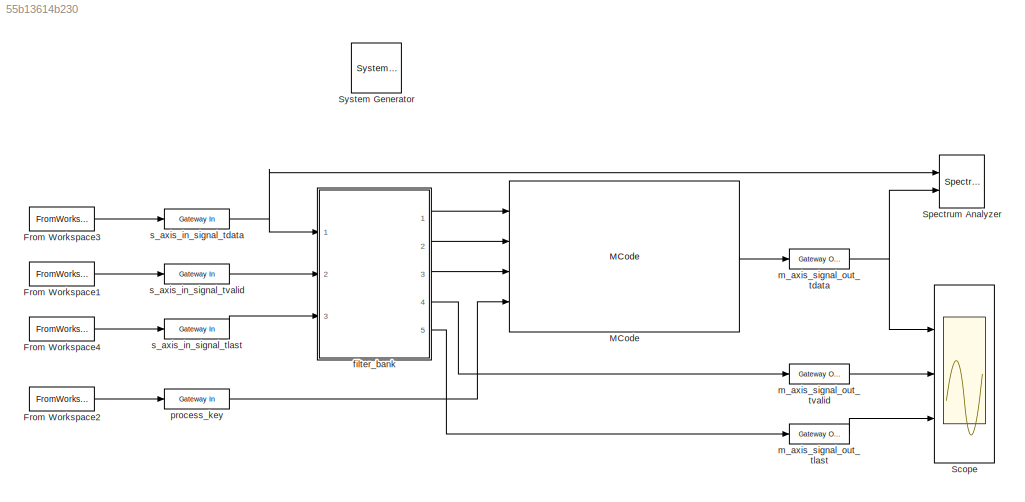
MODEL slx_55b13614b230
KIND model
CONFIG AbsTol = auto
CONFIG EnableMultiTasking = off
CONFIG FixedStep = auto
CONFIG InitFcn = [input, sampling_rate] = model_init()
CONFIG MaxStep = auto
CONFIG MinStep = auto
CONFIG RelTol = 1e-3
CONFIG SampleTimeConstraint = Unconstrained
CONFIG Solver = VariableStepAuto
CONFIG SolverName = VariableStepAuto
CONFIG StartTime = 0.0
CONFIG StopTime = model_parameters.end
BLOCK [Reference]  System Generator  REF=xbsIndex_r4/ System Generator
  AttributesFormatString = System\nGenerator
  Ports = []
  SourceBlock = xbsIndex_r4/ System Generator
  SourceType = Xilinx System Generator Block
  Tag = genX
  UserDataPersistent = on
BLOCK [FromWorkspace] From Workspace1
  Interpolate = off
  OutputAfterFinalValue = Setting to zero
  SampleTime = 1/model_parameters.sampling_rate
  VariableName = input.tvalid
  ZeroCross = on
BLOCK [FromWorkspace] From Workspace2
  Interpolate = off
  OutputAfterFinalValue = Setting to zero
  SampleTime = 1/model_parameters.sampling_rate
  VariableName = input.key
  ZeroCross = on
BLOCK [FromWorkspace] From Workspace3
  Interpolate = off
  OutputAfterFinalValue = Setting to zero
  SampleTime = 1/model_parameters.sampling_rate
  VariableName = input.tdata
  ZeroCross = on
BLOCK [FromWorkspace] From Workspace4
  Interpolate = off
  OutputAfterFinalValue = Setting to zero
  SampleTime = 1/model_parameters.sampling_rate
  VariableName = input.tlast
  ZeroCross = on
BLOCK [Reference] MCode  REF=xbsIndex_r4/MCode
  Ports = [4, 1]
  SourceBlock = xbsIndex_r4/MCode
  SourceType = Xilinx MCode Block Block
BLOCK [Scope] Scope
  Floating = off
  NumInputPorts = 3
  Ports = [3]
  ScopeSpecificationString = Simulink.scopes.TimeScopeBlockCfg('CurrentConfiguration', extmgr.ConfigurationSet(extmgr.Configuration('Core','General UI',true),extmgr.Configuration('Core','Source UI',true),extmgr.Configuration('Sources','WiredSimulink',true),extmgr.Configuration('Visuals','Time Domain',true,'SerializedDisplays',{struct('MinYLimReal','-0.04988','MaxYLimReal','1.10905','YLabelReal','','MinYLimMag','0.00000','MaxY...<+1512ch>
BLOCK [SpectrumAnalyzer] Spectrum Analyzer
  NumInputPorts = 2
  Ports = [2]
  ScopeSpecificationString = spbscopes.SpectrumAnalyzerBlockCfg('CurrentConfiguration', extmgr.ConfigurationSet(extmgr.Configuration('Core','General UI',true),extmgr.Configuration('Core','Source UI',true),extmgr.Configuration('Sources','WiredSimulink',true),extmgr.Configuration('Visuals','Spectrum',true,'AxesProperties',struct('Color',{[0 0 0],[0 0 0]},'XColor',{[0.686274509803922 0.686274509803922 0.686274509803922],[0.68627...<+2151ch>
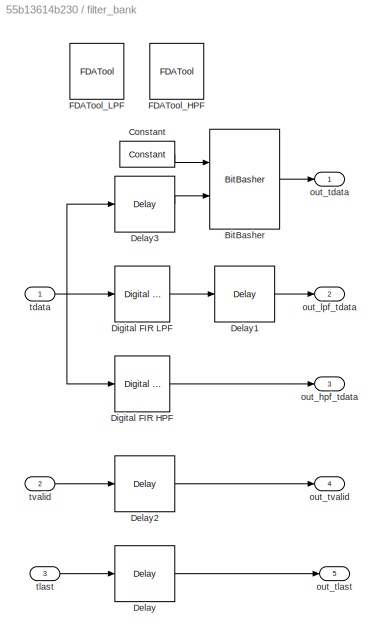
BLOCK [SubSystem] filter_bank
  Ports = [3, 5]
  RequestExecContextInheritance = off
BLOCK [Reference] filter_bank/BitBasher  REF=xbsIndex_r4/BitBasher
  Ports = [2, 1]
  SourceBlock = xbsIndex_r4/BitBasher
  SourceType = Xilinx BitBasher Block
BLOCK [Reference] filter_bank/Constant  REF=xbsIndex_r4/Constant
  Ports = [0, 1]
  SourceBlock = xbsIndex_r4/Constant
  SourceType = Xilinx Constant Block Block
BLOCK [Reference] filter_bank/Delay  REF=xbsIndex_r4/Delay
  Ports = [1, 1]
  SourceBlock = xbsIndex_r4/Delay
  SourceType = Xilinx Delay Block
BLOCK [Reference] filter_bank/Delay1  REF=xbsIndex_r4/Delay
  Ports = [1, 1]
  SourceBlock = xbsIndex_r4/Delay
  SourceType = Xilinx Delay Block
BLOCK [Reference] filter_bank/Delay2  REF=xbsIndex_r4/Delay
  Ports = [1, 1]
  SourceBlock = xbsIndex_r4/Delay
  SourceType = Xilinx Delay Block
BLOCK [Reference] filter_bank/Delay3  REF=xbsIndex_r4/Delay
  Ports = [1, 1]
  SourceBlock = xbsIndex_r4/Delay
  SourceType = Xilinx Delay Block
BLOCK [Reference] filter_bank/Digital FIR HPF  REF=xbsIndex_r4/Digital FIR Filter
  Ports = [1, 1]
  SourceBlock = xbsIndex_r4/Digital FIR Filter
  SourceType = Xilinx FIR Block Block
  UserDataPersistent = on
BLOCK [Reference] filter_bank/Digital FIR LPF  REF=xbsIndex_r4/Digital FIR Filter
  Ports = [1, 1]
  SourceBlock = xbsIndex_r4/Digital FIR Filter
  SourceType = Xilinx FIR Block Block
  UserDataPersistent = on
BLOCK [Reference] filter_bank/FDATool_HPF  REF=xbsIndex_r4/FDATool
  Ports = []
  SourceBlock = xbsIndex_r4/FDATool
  SourceType = Xilinx FDATool Interface Block
  UserDataPersistent = on
BLOCK [Reference] filter_bank/FDATool_LPF  REF=xbsIndex_r4/FDATool
  Ports = []
  SourceBlock = xbsIndex_r4/FDATool
  SourceType = Xilinx FDATool Interface Block
  UserDataPersistent = on
BLOCK [Outport] filter_bank/out_hpf_tdata
  IconDisplay = Port number
  Port = 3
BLOCK [Outport] filter_bank/out_lpf_tdata
  IconDisplay = Port number
  Port = 2
BLOCK [Outport] filter_bank/out_tdata
  IconDisplay = Port number
BLOCK [Outport] filter_bank/out_tlast
  IconDisplay = Port number
  Port = 5
BLOCK [Outport] filter_bank/out_tvalid
  IconDisplay = Port number
  Port = 4
BLOCK [Inport] filter_bank/tdata
  IconDisplay = Port number
BLOCK [Inport] filter_bank/tlast
  IconDisplay = Port number
  Port = 3
BLOCK [Inport] filter_bank/tvalid
  IconDisplay = Port number
  Port = 2
BLOCK [Reference] m_axis_signal_out_tdata  REF=xbsIndex_r4/Gateway Out
  Ports = [1, 1]
  SourceBlock = xbsIndex_r4/Gateway Out
  SourceType = Xilinx Gateway Out Block
BLOCK [Reference] m_axis_signal_out_tlast  REF=xbsIndex_r4/Gateway Out
  Ports = [1, 1]
  SourceBlock = xbsIndex_r4/Gateway Out
  SourceType = Xilinx Gateway Out Block
BLOCK [Reference] m_axis_signal_out_tvalid  REF=xbsIndex_r4/Gateway Out
  Ports = [1, 1]
  SourceBlock = xbsIndex_r4/Gateway Out
  SourceType = Xilinx Gateway Out Block
BLOCK [Reference] process_key  REF=xbsIndex_r4/Gateway In
  Ports = [1, 1]
  SourceBlock = xbsIndex_r4/Gateway In
  SourceType = Xilinx Gateway In Block
BLOCK [Reference] s_axis_in_signal_tdata  REF=xbsIndex_r4/Gateway In
  Ports = [1, 1]
  SourceBlock = xbsIndex_r4/Gateway In
  SourceType = Xilinx Gateway In Block
BLOCK [Reference] s_axis_in_signal_tlast  REF=xbsIndex_r4/Gateway In
  Ports = [1, 1]
  SourceBlock = xbsIndex_r4/Gateway In
  SourceType = Xilinx Gateway In Block
BLOCK [Reference] s_axis_in_signal_tvalid  REF=xbsIndex_r4/Gateway In
  Ports = [1, 1]
  SourceBlock = xbsIndex_r4/Gateway In
  SourceType = Xilinx Gateway In Block
LINE From Workspace1:1 -> s_axis_in_signal_tvalid:1
LINE From Workspace2:1 -> process_key:1
LINE From Workspace3:1 -> s_axis_in_signal_tdata:1
LINE From Workspace4:1 -> s_axis_in_signal_tlast:1
LINE MCode:1 -> m_axis_signal_out_tdata:1
LINE filter_bank/BitBasher:1 -> filter_bank/out_tdata:1
LINE filter_bank/Constant:1 -> filter_bank/BitBasher:1
LINE filter_bank/Delay1:1 -> filter_bank/out_lpf_tdata:1
LINE filter_bank/Delay2:1 -> filter_bank/out_tvalid:1
LINE filter_bank/Delay3:1 -> filter_bank/BitBasher:2
LINE filter_bank/Delay:1 -> filter_bank/out_tlast:1
LINE filter_bank/Digital FIR HPF:1 -> filter_bank/out_hpf_tdata:1
LINE filter_bank/Digital FIR LPF:1 -> filter_bank/Delay1:1
NET filter_bank/tdata:1 -> filter_bank/Delay3:1, filter_bank/Digital FIR HPF:1, filter_bank/Digital FIR LPF:1
LINE filter_bank/tlast:1 -> filter_bank/Delay:1
LINE filter_bank/tvalid:1 -> filter_bank/Delay2:1
LINE filter_bank:1 -> MCode:1
LINE filter_bank:2 -> MCode:2
LINE filter_bank:3 -> MCode:3
LINE filter_bank:4 -> m_axis_signal_out_tvalid:1
LINE filter_bank:5 -> m_axis_signal_out_tlast:1
NET m_axis_signal_out_tdata:1 -> Scope:1, Spectrum Analyzer:2
LINE m_axis_signal_out_tlast:1 -> Scope:3
LINE m_axis_signal_out_tvalid:1 -> Scope:2
LINE process_key:1 -> MCode:4
NET s_axis_in_signal_tdata:1 -> Spectrum Analyzer:1, filter_bank:1
LINE s_axis_in_signal_tlast:1 -> filter_bank:3
LINE s_axis_in_signal_tvalid:1 -> filter_bank:2
note: NET lines group one-source signal fan-out (src -> all destinations, sorted); 1:1 wires keep LINE
